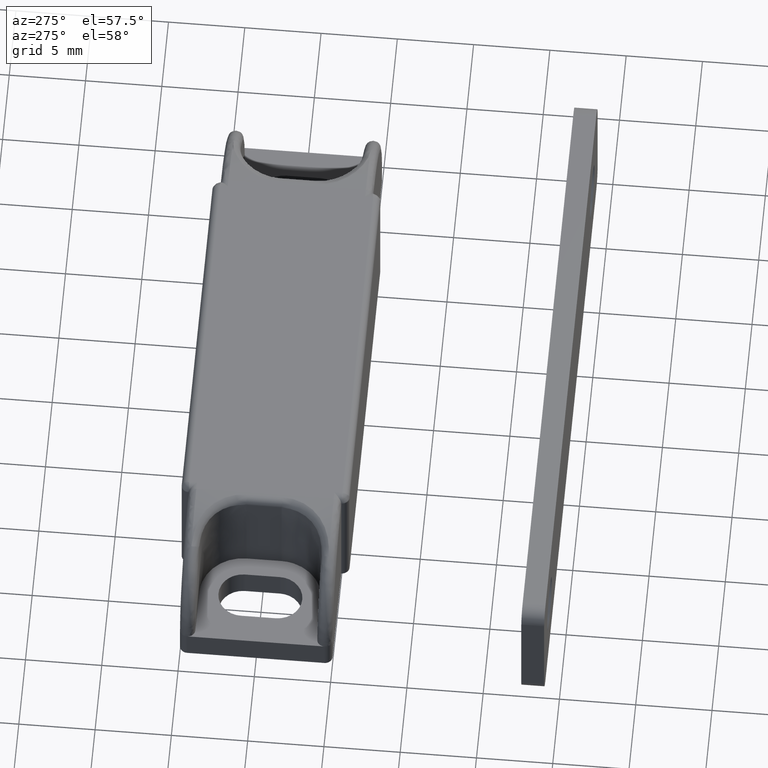
[diagram: clean part render]
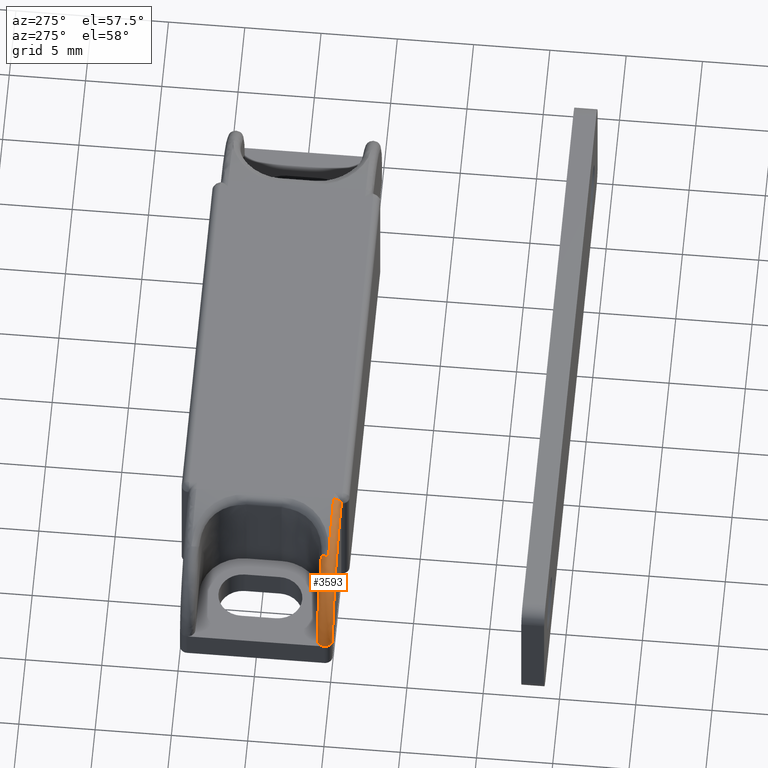
[diagram: same view with one face highlighted and labeled with its STEP entity id]
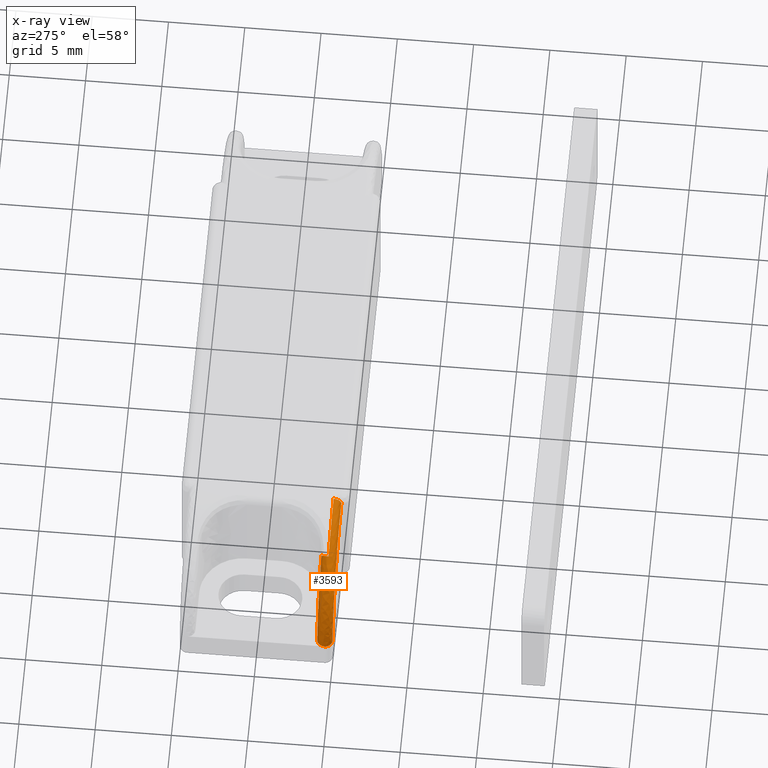
[diagram: x-ray of the same camera — body ghosted, the highlighted face saturated]
A machine part, auxiliary view. The second image highlights one B-rep face of the part: STEP entity #3593.
The next image is the same camera in x-ray: the body ghosted, the highlighted face saturated — about 0% of this face is hidden behind the body in this view.
In plain terms, the highlighted face is a freeform B-spline surface patch.
Its self-contained STEP definition (entity closure, byte-faithful):
#772=CARTESIAN_POINT('',(-12.0,-4.500000000000060,9.0));
#773=VERTEX_POINT('',#772);
#866=CARTESIAN_POINT('',(-15.769230769252101,-4.499999999999949,7.898550619272709));
#867=VERTEX_POINT('',#866);
#897=CARTESIAN_POINT('',(-15.769230769252131,-4.499999999999949,7.898550619272755));
#898=CARTESIAN_POINT('',(-14.045548849910436,-4.499999999999949,9.000000000000002));
#899=CARTESIAN_POINT('',(-12.0,-4.499999999999949,9.000000000000002));
#907=(BOUNDED_CURVE()B_SPLINE_CURVE(2,(#897,#898,#899),.UNSPECIFIED.,.F.,.U.)CURVE()GEOMETRIC_REPRESENTATION_ITEM()QUASI_UNIFORM_CURVE()RATIONAL_B_SPLINE_CURVE((1.0,0.959856783188913,1.0))REPRESENTATION_ITEM(''));
#908=EDGE_CURVE('',#867,#773,#907,.T.);
#1974=CARTESIAN_POINT('',(-15.500000000019799,-4.0,7.477225575038940));
#1975=VERTEX_POINT('',#1974);
#2009=CARTESIAN_POINT('',(-15.769230769252101,-4.499999999999949,7.898550619272709));
#2010=CARTESIAN_POINT('',(-15.769237501377370,-4.450914833572533,7.898561154520911));
#2011=CARTESIAN_POINT('',(-15.760418171447430,-4.340456248476561,7.884759594678974));
#2012=CARTESIAN_POINT('',(-15.724321342752560,-4.211213995258911,7.828270888020631));
#2013=CARTESIAN_POINT('',(-15.672406496821941,-4.110024174026035,7.747028224633880));
#2014=CARTESIAN_POINT('',(-15.603480744503869,-4.026690747572626,7.639164826527237));
#2015=CARTESIAN_POINT('',(-15.539658584500179,-3.999895063416989,7.539288150234541));
#2016=CARTESIAN_POINT('',(-15.500000000019799,-4.0,7.477225575038940));
#2017=B_SPLINE_CURVE_WITH_KNOTS('',3,(#2009,#2010,#2011,#2012,#2013,#2014,#2015,#2016),.UNSPECIFIED.,.F.,.U.,(4,1,1,1,1,4),(0.000000095313690,0.147264220978392,0.331358563654438,0.429525021238647,0.564517874107187,0.785417872185935),.UNSPECIFIED.);
#2018=EDGE_CURVE('',#867,#1975,#2017,.T.);
#2770=CARTESIAN_POINT('',(-19.0,-4.499999999999949,2.0));
#2771=VERTEX_POINT('',#2770);
#2777=CARTESIAN_POINT('',(-18.500000000000000,-4.0,2.0));
#2778=VERTEX_POINT('',#2777);
#2779=CARTESIAN_POINT('',(-19.0,-4.499999999999949,2.0));
#2780=CARTESIAN_POINT('',(-18.999999999999993,-3.999999999999950,2.000000000000000));
#2781=CARTESIAN_POINT('',(-18.500000000000000,-3.999999999999950,2.0));
#2789=(BOUNDED_CURVE()B_SPLINE_CURVE(2,(#2779,#2780,#2781),.UNSPECIFIED.,.F.,.U.)CURVE()GEOMETRIC_REPRESENTATION_ITEM()QUASI_UNIFORM_CURVE()RATIONAL_B_SPLINE_CURVE((1.0,0.707106781186548,1.0))REPRESENTATION_ITEM(''));
#2790=EDGE_CURVE('',#2771,#2778,#2789,.T.);
#2871=CARTESIAN_POINT('',(-18.500000000000000,-4.0,2.0));
#2872=CARTESIAN_POINT('',(-18.500000000000004,-4.0,5.560196623768282));
#2873=CARTESIAN_POINT('',(-15.500000000019829,-4.0,7.477225575038989));
#2881=(BOUNDED_CURVE()B_SPLINE_CURVE(2,(#2871,#2872,#2873),.UNSPECIFIED.,.F.,.U.)CURVE()GEOMETRIC_REPRESENTATION_ITEM()QUASI_UNIFORM_CURVE()RATIONAL_B_SPLINE_CURVE((1.0,0.877058019307899,1.0))REPRESENTATION_ITEM(''));
#2882=EDGE_CURVE('',#2778,#1975,#2881,.T.);
#3332=CARTESIAN_POINT('',(-12.0,-5.0,8.500000000000000));
#3333=VERTEX_POINT('',#3332);
#3434=CARTESIAN_POINT('',(-12.0,-4.500000000000060,9.000000000000002));
#3435=CARTESIAN_POINT('',(-12.0,-5.000000000000060,9.000000000000002));
#3436=CARTESIAN_POINT('',(-12.0,-5.000000000000060,8.500000000000000));
#3444=(BOUNDED_CURVE()B_SPLINE_CURVE(2,(#3434,#3435,#3436),.UNSPECIFIED.,.F.,.U.)CURVE()GEOMETRIC_REPRESENTATION_ITEM()QUASI_UNIFORM_CURVE()RATIONAL_B_SPLINE_CURVE((1.0,0.707106781186548,1.0))REPRESENTATION_ITEM(''));
#3445=EDGE_CURVE('',#773,#3333,#3444,.T.);
#3535=CARTESIAN_POINT('',(-18.413817318031938,-4.994987766404115,1.552919170864407));
#3536=CARTESIAN_POINT('',(-18.927896656434189,-4.994987766404113,8.927896464929354));
#3537=CARTESIAN_POINT('',(-11.552919348158770,-4.994987766404114,8.413817330390396));
#3538=CARTESIAN_POINT('',(-18.986681526024224,-5.076916131675684,1.512987162765074));
#3539=CARTESIAN_POINT('',(-19.546676991817716,-5.076916131675684,9.546676783208216));
#3540=CARTESIAN_POINT('',(-11.512987355894866,-5.076916131675682,8.986681539486495));
#3541=CARTESIAN_POINT('',(-18.983045690417946,-4.496858428017170,1.513240601913221));
#3542=CARTESIAN_POINT('',(-19.542749737252915,-4.496858428017170,9.542749528751967));
#3543=CARTESIAN_POINT('',(-11.513240794942510,-4.496858428017171,8.983045703873213));
#3544=CARTESIAN_POINT('',(-18.979453147982753,-3.923707675092313,1.513491023272451));
#3545=CARTESIAN_POINT('',(-19.538869245887049,-3.923707675092314,9.538869037493377));
#3546=CARTESIAN_POINT('',(-11.513491216202432,-3.923707675092311,8.979453161431103));
#3547=CARTESIAN_POINT('',(-18.413467578337098,-4.005062378431342,1.552943549780268));
#3548=CARTESIAN_POINT('',(-18.927518884454980,-4.005062378431341,8.927518692960597));
#3549=CARTESIAN_POINT('',(-11.552943727064967,-4.005062378431342,8.413467590694888));
#3557=(BOUNDED_SURFACE()B_SPLINE_SURFACE(2,2,((#3535,#3538,#3541,#3544,#3547),(#3536,#3539,#3542,#3545,#3548),(#3537,#3540,#3543,#3546,#3549)),.UNSPECIFIED.,.F.,.F.,.U.)B_SPLINE_SURFACE_WITH_KNOTS((3,3),(3,2,3),(0.0,12.756599937752521),(0.0,0.916508140749337,1.825885480533979),.UNSPECIFIED.)GEOMETRIC_REPRESENTATION_ITEM()RATIONAL_B_SPLINE_SURFACE(((0.913070520886805,0.598155723932868,0.919258316275454,0.600654030901937,0.908208695093714),(0.599179651772745,0.392524706661077,0.603240237457421,0.394164158012868,0.595989200412149),(0.913070509387803,0.598155716399831,0.919258304698524,0.600654023337437,0.908208683655941)))REPRESENTATION_ITEM('')SURFACE());
#3558=CARTESIAN_POINT('',(-18.500000000000000,-5.0,2.0));
#3559=VERTEX_POINT('',#3558);
#3560=CARTESIAN_POINT('',(-19.0,-4.499999999999949,2.0));
#3561=CARTESIAN_POINT('',(-18.999999999999993,-4.999999999999948,2.000000000000000));
#3562=CARTESIAN_POINT('',(-18.500000000000000,-4.999999999999949,2.0));
#3570=(BOUNDED_CURVE()B_SPLINE_CURVE(2,(#3560,#3561,#3562),.UNSPECIFIED.,.F.,.U.)CURVE()GEOMETRIC_REPRESENTATION_ITEM()QUASI_UNIFORM_CURVE()RATIONAL_B_SPLINE_CURVE((1.0,0.707106781186548,1.0))REPRESENTATION_ITEM(''));
#3571=EDGE_CURVE('',#2771,#3559,#3570,.T.);
#3572=ORIENTED_EDGE('',*,*,#3571,.T.);
#3573=CARTESIAN_POINT('',(-12.0,-5.0,8.500000000000000));
#3574=CARTESIAN_POINT('',(-18.500000000000004,-4.999999999999999,8.500000000000000));
#3575=CARTESIAN_POINT('',(-18.500000000000000,-5.0,2.0));
#3583=(BOUNDED_CURVE()B_SPLINE_CURVE(2,(#3573,#3574,#3575),.UNSPECIFIED.,.F.,.U.)CURVE()GEOMETRIC_REPRESENTATION_ITEM()QUASI_UNIFORM_CURVE()RATIONAL_B_SPLINE_CURVE((1.0,0.707106781186547,1.0))REPRESENTATION_ITEM(''));
#3584=EDGE_CURVE('',#3333,#3559,#3583,.T.);
#3585=ORIENTED_EDGE('',*,*,#3584,.F.);
#3586=ORIENTED_EDGE('',*,*,#3445,.F.);
#3587=ORIENTED_EDGE('',*,*,#908,.F.);
#3588=ORIENTED_EDGE('',*,*,#2018,.T.);
#3589=ORIENTED_EDGE('',*,*,#2882,.F.);
#3590=ORIENTED_EDGE('',*,*,#2790,.F.);
#3591=EDGE_LOOP('',(#3572,#3585,#3586,#3587,#3588,#3589,#3590));
#3592=FACE_OUTER_BOUND('',#3591,.T.);
#3593=ADVANCED_FACE('',(#3592),#3557,.T.);